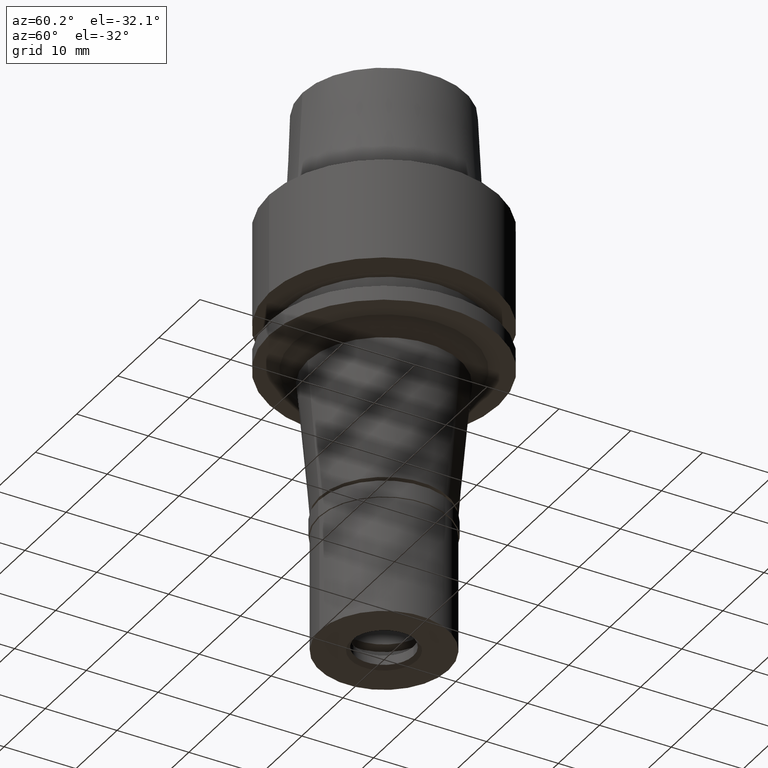
[diagram: clean part render]
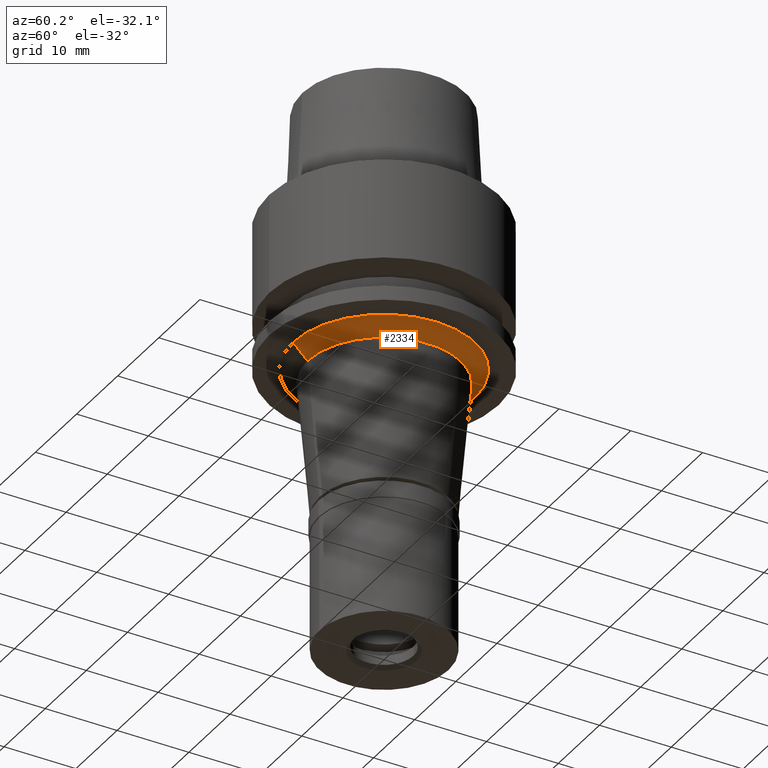
[diagram: same view with one face highlighted and labeled with its STEP entity id]
A machine part, auxiliary view. The second image highlights one B-rep face of the part: STEP entity #2334.
In plain terms, the highlighted conical surface has half-angle 45 deg.
Its self-contained STEP definition (entity closure, byte-faithful):
#16 = LINE ( 'NONE', #1944, #1064 ) ;
#75 = EDGE_CURVE ( 'NONE', #861, #2086, #16, .T. ) ;
#148 = AXIS2_PLACEMENT_3D ( 'NONE', #2673, #1431, #778 ) ;
#159 = CONICAL_SURFACE ( 'NONE', #504, 11.65353574064000064, 0.7853981633972997312 ) ;
#220 = ORIENTED_EDGE ( 'NONE', *, *, #1949, .F. ) ;
#239 = CIRCLE ( 'NONE', #1900, 10.65353574063999886 ) ;
#243 = VECTOR ( 'NONE', #469, 1000.000000000000000 ) ;
#252 = LINE ( 'NONE', #686, #243 ) ;
#450 = VERTEX_POINT ( 'NONE', #1189 ) ;
#469 = DIRECTION ( 'NONE',  ( 0.0000000000000000000, -0.7071067811864980568, -0.7071067811865969777 ) ) ;
#478 = EDGE_CURVE ( 'NONE', #1735, #861, #2418, .T. ) ;
#504 = AXIS2_PLACEMENT_3D ( 'NONE', #1938, #1728, #1252 ) ;
#608 = EDGE_LOOP ( 'NONE', ( #2424, #707, #1548, #220 ) ) ;
#686 = CARTESIAN_POINT ( 'NONE',  ( 0.0000000000000000000, 12.65353574063999886, -20.00000000000000000 ) ) ;
#707 = ORIENTED_EDGE ( 'NONE', *, *, #75, .T. ) ;
#778 = DIRECTION ( 'NONE',  ( 0.0000000000000000000, 1.000000000000000000, 0.0000000000000000000 ) ) ;
#861 = VERTEX_POINT ( 'NONE', #1212 ) ;
#877 = DIRECTION ( 'NONE',  ( 0.0000000000000000000, 0.7071067811864980568, -0.7071067811865969777 ) ) ;
#1064 = VECTOR ( 'NONE', #877, 1000.000000000000000 ) ;
#1189 = CARTESIAN_POINT ( 'NONE',  ( 0.0000000000000000000, 10.65353574063999886, -22.00000000000000000 ) ) ;
#1212 = CARTESIAN_POINT ( 'NONE',  ( 0.0000000000000000000, -12.65353574063999886, -20.00000000000000000 ) ) ;
#1252 = DIRECTION ( 'NONE',  ( 0.0000000000000000000, 1.000000000000000000, 0.0000000000000000000 ) ) ;
#1431 = DIRECTION ( 'NONE',  ( 0.0000000000000000000, 0.0000000000000000000, -1.000000000000000000 ) ) ;
#1505 = CARTESIAN_POINT ( 'NONE',  ( 0.0000000000000000000, 0.0000000000000000000, -22.00000000000000000 ) ) ;
#1548 = ORIENTED_EDGE ( 'NONE', *, *, #1567, .T. ) ;
#1562 = CARTESIAN_POINT ( 'NONE',  ( 0.0000000000000000000, 12.65353574063999886, -20.00000000000000000 ) ) ;
#1567 = EDGE_CURVE ( 'NONE', #2086, #450, #239, .T. ) ;
#1728 = DIRECTION ( 'NONE',  ( 0.0000000000000000000, 0.0000000000000000000, 1.000000000000000000 ) ) ;
#1735 = VERTEX_POINT ( 'NONE', #1562 ) ;
#1900 = AXIS2_PLACEMENT_3D ( 'NONE', #1505, #2140, #2346 ) ;
#1938 = CARTESIAN_POINT ( 'NONE',  ( 0.0000000000000000000, 0.0000000000000000000, -21.00000000000000000 ) ) ;
#1944 = CARTESIAN_POINT ( 'NONE',  ( 0.0000000000000000000, -12.65353574063999886, -20.00000000000000000 ) ) ;
#1949 = EDGE_CURVE ( 'NONE', #1735, #450, #252, .T. ) ;
#2086 = VERTEX_POINT ( 'NONE', #2532 ) ;
#2140 = DIRECTION ( 'NONE',  ( 0.0000000000000000000, 0.0000000000000000000, 1.000000000000000000 ) ) ;
#2269 = FACE_OUTER_BOUND ( 'NONE', #608, .T. ) ;
#2334 = ADVANCED_FACE ( 'NONE', ( #2269 ), #159, .T. ) ;
#2346 = DIRECTION ( 'NONE',  ( 0.0000000000000000000, -1.000000000000000000, 0.0000000000000000000 ) ) ;
#2418 = CIRCLE ( 'NONE', #148, 12.65353574063999886 ) ;
#2424 = ORIENTED_EDGE ( 'NONE', *, *, #478, .T. ) ;
#2532 = CARTESIAN_POINT ( 'NONE',  ( 0.0000000000000000000, -10.65353574063999886, -22.00000000000000000 ) ) ;
#2673 = CARTESIAN_POINT ( 'NONE',  ( 0.0000000000000000000, 0.0000000000000000000, -20.00000000000000000 ) ) ;